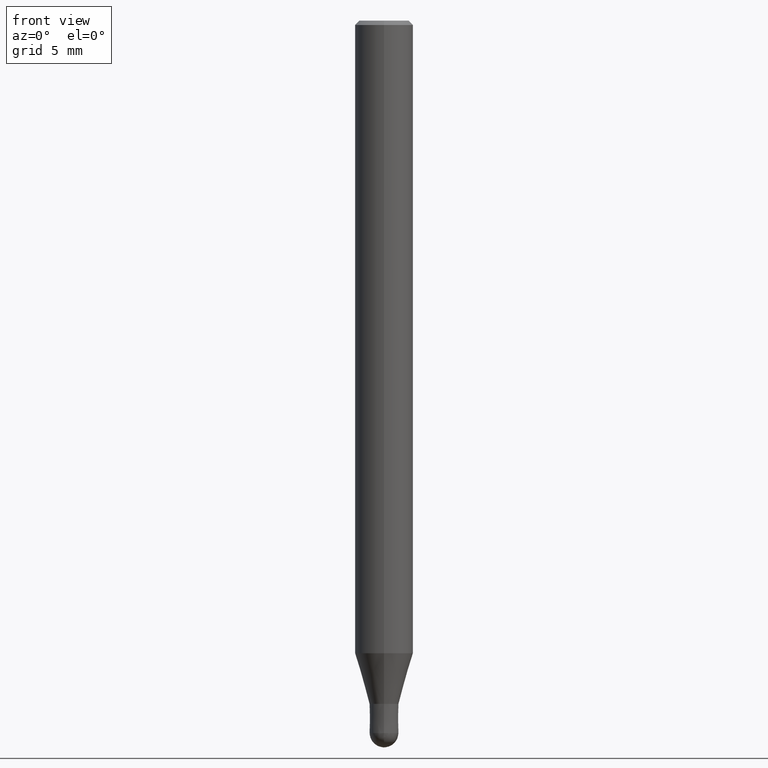
[diagram: clean part render]
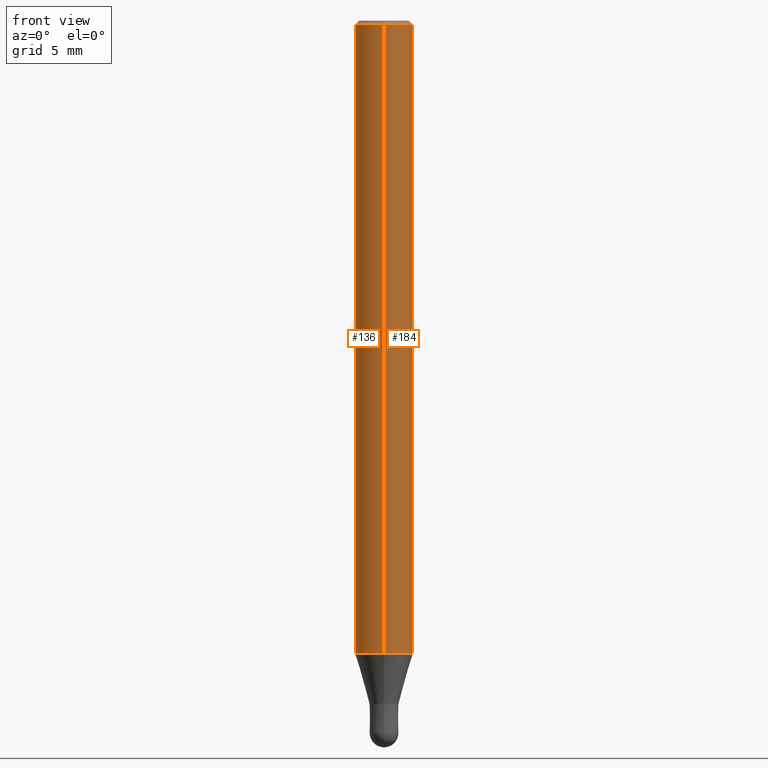
[diagram: same view with one multi-face feature highlighted, each face labeled with its STEP entity id]
A machine part, front view. The highlighted faces form ONE feature: a constant-radius fillet chain: 2 tangent blend faces with common blend radius 2 mm. The faces share edges in the B-rep.
Their STEP definitions:
[1] entity #136 (Cylinder):
#108=VERTEX_POINT('',#236);
#112=VERTEX_POINT('',#240);
#124=EDGE_CURVE('',#108,#112,#254,.T.);
#136=ADVANCED_FACE('',(#267),#268,.T.);
#138=VERTEX_POINT('',#270);
#142=EDGE_CURVE('',#112,#138,#275,.T.);
#148=EDGE_CURVE('',#108,#174,#282,.T.);
#154=EDGE_CURVE('',#138,#174,#288,.T.);
#174=VERTEX_POINT('',#310);
#236=CARTESIAN_POINT('',(2.44921270764475E-016,-2.0,-43.513));
#240=CARTESIAN_POINT('',(2.44921270764475E-016,-2.0,-0.299999999999997));
#254=LINE('',#398,#399);
#267=FACE_OUTER_BOUND('',#416,.T.);
#268=CYLINDRICAL_SURFACE('',#417,2.0);
#270=CARTESIAN_POINT('',(0.0,2.0,-0.299999999999997));
#275=CIRCLE('',#425,2.0);
#282=CIRCLE('',#434,2.0);
#288=LINE('',#442,#443);
#310=CARTESIAN_POINT('',(0.0,2.0,-43.513));
#398=CARTESIAN_POINT('',(2.44921270764475E-016,-2.0,-21.9065));
#399=VECTOR('',#545,1.0);
#416=EDGE_LOOP('',(#562,#563,#564,#565));
#417=AXIS2_PLACEMENT_3D('',#566,#567,#568);
#425=AXIS2_PLACEMENT_3D('',#577,#578,#579);
#434=AXIS2_PLACEMENT_3D('',#589,#590,#591);
#442=CARTESIAN_POINT('',(-2.44921270764475E-016,2.0,-21.9065));
#443=VECTOR('',#595,1.0);
#545=DIRECTION('',(-0.0,-0.0,1.0));
#562=ORIENTED_EDGE('',*,*,#154,.T.);
#563=ORIENTED_EDGE('',*,*,#148,.F.);
#564=ORIENTED_EDGE('',*,*,#124,.T.);
#565=ORIENTED_EDGE('',*,*,#142,.T.);
#566=CARTESIAN_POINT('',(0.0,0.0,-21.9065));
#567=DIRECTION('',(-0.0,-0.0,1.0));
#568=DIRECTION('',(0.0,1.0,0.0));
#577=CARTESIAN_POINT('',(0.0,0.0,-0.299999999999997));
#578=DIRECTION('',(0.0,0.0,-1.0));
#579=DIRECTION('',(0.0,1.0,0.0));
#589=CARTESIAN_POINT('',(0.0,0.0,-43.513));
#590=DIRECTION('',(0.0,0.0,-1.0));
#591=DIRECTION('',(0.0,1.0,0.0));
#595=DIRECTION('',(0.0,0.0,-1.0));
[2] entity #184 (Cylinder):
#108=VERTEX_POINT('',#236);
#112=VERTEX_POINT('',#240);
#124=EDGE_CURVE('',#108,#112,#254,.T.);
#130=EDGE_CURVE('',#138,#112,#261,.T.);
#138=VERTEX_POINT('',#270);
#154=EDGE_CURVE('',#138,#174,#288,.T.);
#174=VERTEX_POINT('',#310);
#178=EDGE_CURVE('',#174,#108,#314,.T.);
#184=ADVANCED_FACE('',(#322),#323,.T.);
#236=CARTESIAN_POINT('',(2.44921270764475E-016,-2.0,-43.513));
#240=CARTESIAN_POINT('',(2.44921270764475E-016,-2.0,-0.299999999999997));
#254=LINE('',#398,#399);
#261=CIRCLE('',#409,2.0);
#270=CARTESIAN_POINT('',(0.0,2.0,-0.299999999999997));
#288=LINE('',#442,#443);
#310=CARTESIAN_POINT('',(0.0,2.0,-43.513));
#314=CIRCLE('',#475,2.0);
#322=FACE_OUTER_BOUND('',#483,.T.);
#323=CYLINDRICAL_SURFACE('',#484,2.0);
#398=CARTESIAN_POINT('',(2.44921270764475E-016,-2.0,-21.9065));
#399=VECTOR('',#545,1.0);
#409=AXIS2_PLACEMENT_3D('',#555,#556,#557);
#442=CARTESIAN_POINT('',(-2.44921270764475E-016,2.0,-21.9065));
#443=VECTOR('',#595,1.0);
#475=AXIS2_PLACEMENT_3D('',#619,#620,#621);
#483=EDGE_LOOP('',(#635,#636,#637,#638));
#484=AXIS2_PLACEMENT_3D('',#639,#640,#641);
#545=DIRECTION('',(-0.0,-0.0,1.0));
#555=CARTESIAN_POINT('',(0.0,0.0,-0.299999999999997));
#556=DIRECTION('',(0.0,0.0,-1.0));
#557=DIRECTION('',(0.0,1.0,0.0));
#595=DIRECTION('',(0.0,0.0,-1.0));
#619=CARTESIAN_POINT('',(0.0,0.0,-43.513));
#620=DIRECTION('',(0.0,0.0,-1.0));
#621=DIRECTION('',(0.0,1.0,0.0));
#635=ORIENTED_EDGE('',*,*,#154,.F.);
#636=ORIENTED_EDGE('',*,*,#130,.T.);
#637=ORIENTED_EDGE('',*,*,#124,.F.);
#638=ORIENTED_EDGE('',*,*,#178,.F.);
#639=CARTESIAN_POINT('',(0.0,0.0,-21.9065));
#640=DIRECTION('',(-0.0,-0.0,1.0));
#641=DIRECTION('',(0.0,1.0,0.0));